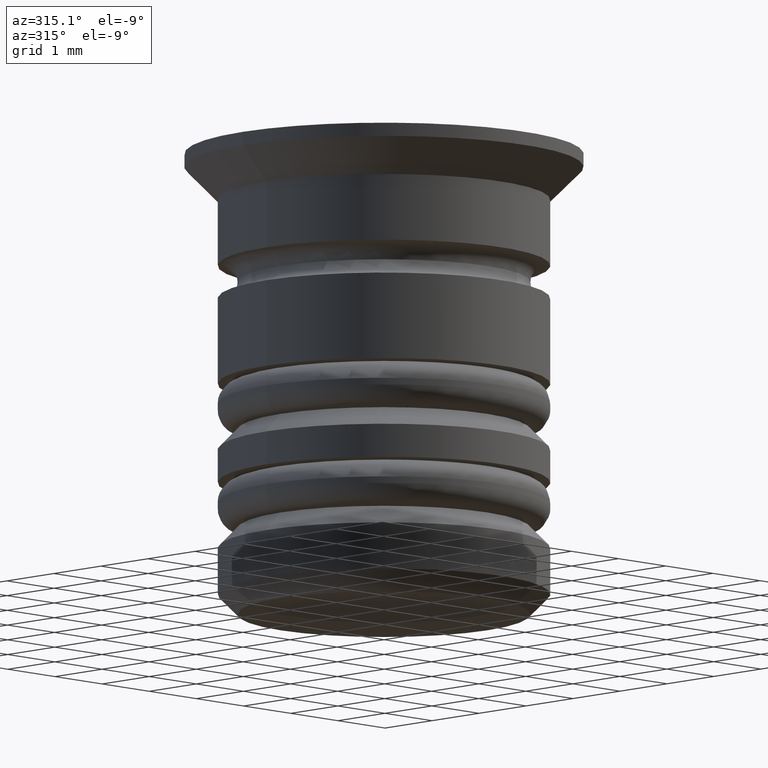
[diagram: clean part render]
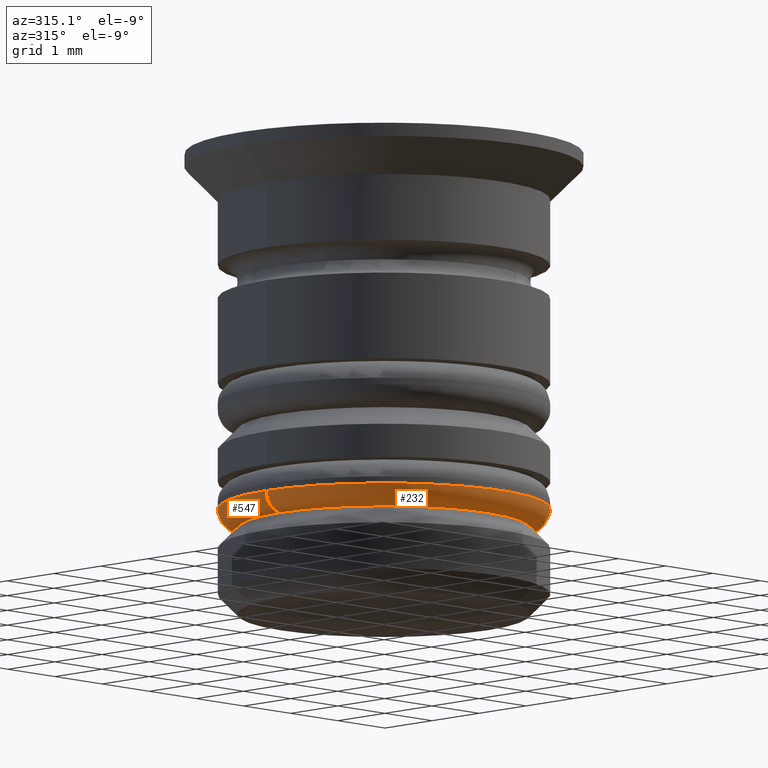
[diagram: same view with one multi-face feature highlighted, each face labeled with its STEP entity id]
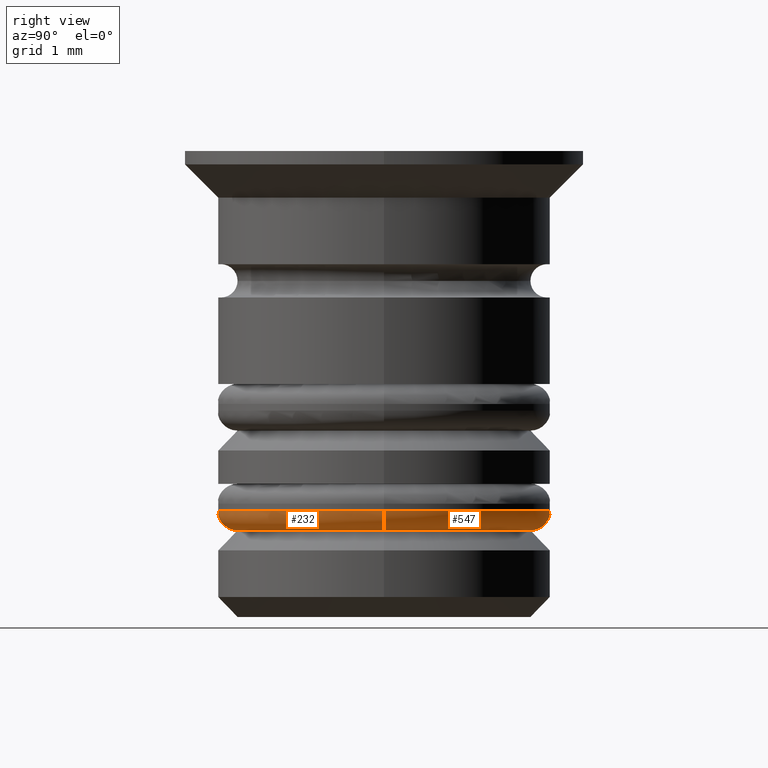
[diagram: same view with one multi-face feature highlighted, each face labeled with its STEP entity id]
A machine part, auxiliary view. The highlighted faces form ONE feature: a constant-radius fillet chain: 2 tangent blend faces with common blend radius 0.3 mm. The faces share edges in the B-rep.
A second angle (right view) of the same feature is appended — it is thin or edge-on in the first view.
Their STEP definitions:
[1] entity #232 (Torus):
#113 = DIRECTION ( 'NONE',  ( 1.000000000000000000, 0.000000000000000000, 0.000000000000000000 ) ) ;
#148 = ORIENTED_EDGE ( 'NONE', *, *, #1125, .F. ) ;
#159 = DIRECTION ( 'NONE',  ( 0.000000000000000000, -1.000000000000000000, 0.000000000000000000 ) ) ;
#180 = EDGE_CURVE ( 'NONE', #708, #1284, #218, .T. ) ;
#218 = CIRCLE ( 'NONE', #1631, 2.200000000000001954 ) ;
#230 = VERTEX_POINT ( 'NONE', #958 ) ;
#232 = ADVANCED_FACE ( 'NONE', ( #1659 ), #1479, .T. ) ;
#508 = DIRECTION ( 'NONE',  ( -1.000000000000000000, 1.224646799147353207E-16, 0.000000000000000000 ) ) ;
#545 = CIRCLE ( 'NONE', #990, 0.2999999999999999334 ) ;
#650 = CARTESIAN_POINT ( 'NONE',  ( 0.000000000000000000, 0.000000000000000000, -5.700000000000009059 ) ) ;
#667 = CARTESIAN_POINT ( 'NONE',  ( 0.000000000000000000, 0.000000000000000000, -5.400000000000009237 ) ) ;
#708 = VERTEX_POINT ( 'NONE', #1408 ) ;
#725 = DIRECTION ( 'NONE',  ( 0.000000000000000000, 0.000000000000000000, -1.000000000000000000 ) ) ;
#740 = EDGE_CURVE ( 'NONE', #708, #230, #545, .T. ) ;
#880 = ORIENTED_EDGE ( 'NONE', *, *, #1729, .F. ) ;
#958 = CARTESIAN_POINT ( 'NONE',  ( 2.500000000000001776, 0.000000000000000000, -5.400000000000009237 ) ) ;
#990 = AXIS2_PLACEMENT_3D ( 'NONE', #1524, #159, #725 ) ;
#1046 = CARTESIAN_POINT ( 'NONE',  ( -2.200000000000001954, 2.877919977996282293E-16, -5.700000000000009059 ) ) ;
#1051 = CIRCLE ( 'NONE', #1547, 2.500000000000001776 ) ;
#1117 = EDGE_LOOP ( 'NONE', ( #880, #1439, #1410, #148 ) ) ;
#1125 = EDGE_CURVE ( 'NONE', #1381, #230, #1051, .T. ) ;
#1132 = CARTESIAN_POINT ( 'NONE',  ( -2.500000000000001776, 3.061616997868385606E-16, -5.400000000000009237 ) ) ;
#1155 = CARTESIAN_POINT ( 'NONE',  ( 0.000000000000000000, 0.000000000000000000, -5.400000000000009237 ) ) ;
#1200 = AXIS2_PLACEMENT_3D ( 'NONE', #1775, #1632, #508 ) ;
#1208 = DIRECTION ( 'NONE',  ( -0.000000000000000000, -0.000000000000000000, -1.000000000000000000 ) ) ;
#1284 = VERTEX_POINT ( 'NONE', #1046 ) ;
#1376 = DIRECTION ( 'NONE',  ( 0.000000000000000000, 0.000000000000000000, 1.000000000000000000 ) ) ;
#1381 = VERTEX_POINT ( 'NONE', #1132 ) ;
#1408 = CARTESIAN_POINT ( 'NONE',  ( 2.200000000000001954, 0.000000000000000000, -5.700000000000009059 ) ) ;
#1410 = ORIENTED_EDGE ( 'NONE', *, *, #740, .T. ) ;
#1439 = ORIENTED_EDGE ( 'NONE', *, *, #180, .F. ) ;
#1479 = TOROIDAL_SURFACE ( 'NONE', #1506, 2.200000000000001954, 0.2999999999999999889 ) ;
#1506 = AXIS2_PLACEMENT_3D ( 'NONE', #1155, #1376, #113 ) ;
#1524 = CARTESIAN_POINT ( 'NONE',  ( 2.200000000000001954, 0.000000000000000000, -5.400000000000009237 ) ) ;
#1547 = AXIS2_PLACEMENT_3D ( 'NONE', #667, #1796, #1677 ) ;
#1631 = AXIS2_PLACEMENT_3D ( 'NONE', #650, #1208, #1776 ) ;
#1632 = DIRECTION ( 'NONE',  ( 1.224646799147353207E-16, 1.000000000000000000, -0.000000000000000000 ) ) ;
#1659 = FACE_OUTER_BOUND ( 'NONE', #1117, .T. ) ;
#1677 = DIRECTION ( 'NONE',  ( 1.000000000000000000, 0.000000000000000000, 0.000000000000000000 ) ) ;
#1729 = EDGE_CURVE ( 'NONE', #1284, #1381, #1766, .T. ) ;
#1766 = CIRCLE ( 'NONE', #1200, 0.2999999999999999334 ) ;
#1775 = CARTESIAN_POINT ( 'NONE',  ( -2.200000000000001954, 2.694222958124179472E-16, -5.400000000000009237 ) ) ;
#1776 = DIRECTION ( 'NONE',  ( 1.000000000000000000, 0.000000000000000000, 0.000000000000000000 ) ) ;
#1796 = DIRECTION ( 'NONE',  ( 0.000000000000000000, 0.000000000000000000, 1.000000000000000000 ) ) ;
[2] entity #547 (Torus):
#92 = DIRECTION ( 'NONE',  ( 1.000000000000000000, 0.000000000000000000, 0.000000000000000000 ) ) ;
#143 = ORIENTED_EDGE ( 'NONE', *, *, #165, .F. ) ;
#159 = DIRECTION ( 'NONE',  ( 0.000000000000000000, -1.000000000000000000, 0.000000000000000000 ) ) ;
#165 = EDGE_CURVE ( 'NONE', #1284, #708, #1388, .T. ) ;
#175 = ORIENTED_EDGE ( 'NONE', *, *, #587, .F. ) ;
#207 = TOROIDAL_SURFACE ( 'NONE', #1232, 2.200000000000001954, 0.2999999999999999889 ) ;
#225 = DIRECTION ( 'NONE',  ( 1.000000000000000000, 0.000000000000000000, 0.000000000000000000 ) ) ;
#230 = VERTEX_POINT ( 'NONE', #958 ) ;
#436 = CIRCLE ( 'NONE', #931, 2.500000000000001776 ) ;
#508 = DIRECTION ( 'NONE',  ( -1.000000000000000000, 1.224646799147353207E-16, 0.000000000000000000 ) ) ;
#524 = CARTESIAN_POINT ( 'NONE',  ( 0.000000000000000000, 0.000000000000000000, -5.700000000000009059 ) ) ;
#545 = CIRCLE ( 'NONE', #990, 0.2999999999999999334 ) ;
#547 = ADVANCED_FACE ( 'NONE', ( #778 ), #207, .T. ) ;
#587 = EDGE_CURVE ( 'NONE', #230, #1381, #436, .T. ) ;
#645 = CARTESIAN_POINT ( 'NONE',  ( 0.000000000000000000, 0.000000000000000000, -5.400000000000009237 ) ) ;
#708 = VERTEX_POINT ( 'NONE', #1408 ) ;
#725 = DIRECTION ( 'NONE',  ( 0.000000000000000000, 0.000000000000000000, -1.000000000000000000 ) ) ;
#740 = EDGE_CURVE ( 'NONE', #708, #230, #545, .T. ) ;
#778 = FACE_OUTER_BOUND ( 'NONE', #1666, .T. ) ;
#811 = DIRECTION ( 'NONE',  ( 1.000000000000000000, 0.000000000000000000, 0.000000000000000000 ) ) ;
#918 = DIRECTION ( 'NONE',  ( -0.000000000000000000, -0.000000000000000000, -1.000000000000000000 ) ) ;
#931 = AXIS2_PLACEMENT_3D ( 'NONE', #1085, #1643, #225 ) ;
#958 = CARTESIAN_POINT ( 'NONE',  ( 2.500000000000001776, 0.000000000000000000, -5.400000000000009237 ) ) ;
#990 = AXIS2_PLACEMENT_3D ( 'NONE', #1524, #159, #725 ) ;
#1046 = CARTESIAN_POINT ( 'NONE',  ( -2.200000000000001954, 2.877919977996282293E-16, -5.700000000000009059 ) ) ;
#1085 = CARTESIAN_POINT ( 'NONE',  ( 0.000000000000000000, 0.000000000000000000, -5.400000000000009237 ) ) ;
#1132 = CARTESIAN_POINT ( 'NONE',  ( -2.500000000000001776, 3.061616997868385606E-16, -5.400000000000009237 ) ) ;
#1200 = AXIS2_PLACEMENT_3D ( 'NONE', #1775, #1632, #508 ) ;
#1232 = AXIS2_PLACEMENT_3D ( 'NONE', #645, #1357, #92 ) ;
#1284 = VERTEX_POINT ( 'NONE', #1046 ) ;
#1357 = DIRECTION ( 'NONE',  ( 0.000000000000000000, 0.000000000000000000, 1.000000000000000000 ) ) ;
#1372 = ORIENTED_EDGE ( 'NONE', *, *, #740, .F. ) ;
#1381 = VERTEX_POINT ( 'NONE', #1132 ) ;
#1388 = CIRCLE ( 'NONE', #1603, 2.200000000000001954 ) ;
#1408 = CARTESIAN_POINT ( 'NONE',  ( 2.200000000000001954, 0.000000000000000000, -5.700000000000009059 ) ) ;
#1516 = ORIENTED_EDGE ( 'NONE', *, *, #1729, .T. ) ;
#1524 = CARTESIAN_POINT ( 'NONE',  ( 2.200000000000001954, 0.000000000000000000, -5.400000000000009237 ) ) ;
#1603 = AXIS2_PLACEMENT_3D ( 'NONE', #524, #918, #811 ) ;
#1632 = DIRECTION ( 'NONE',  ( 1.224646799147353207E-16, 1.000000000000000000, -0.000000000000000000 ) ) ;
#1643 = DIRECTION ( 'NONE',  ( 0.000000000000000000, 0.000000000000000000, 1.000000000000000000 ) ) ;
#1666 = EDGE_LOOP ( 'NONE', ( #143, #1516, #175, #1372 ) ) ;
#1729 = EDGE_CURVE ( 'NONE', #1284, #1381, #1766, .T. ) ;
#1766 = CIRCLE ( 'NONE', #1200, 0.2999999999999999334 ) ;
#1775 = CARTESIAN_POINT ( 'NONE',  ( -2.200000000000001954, 2.694222958124179472E-16, -5.400000000000009237 ) ) ;